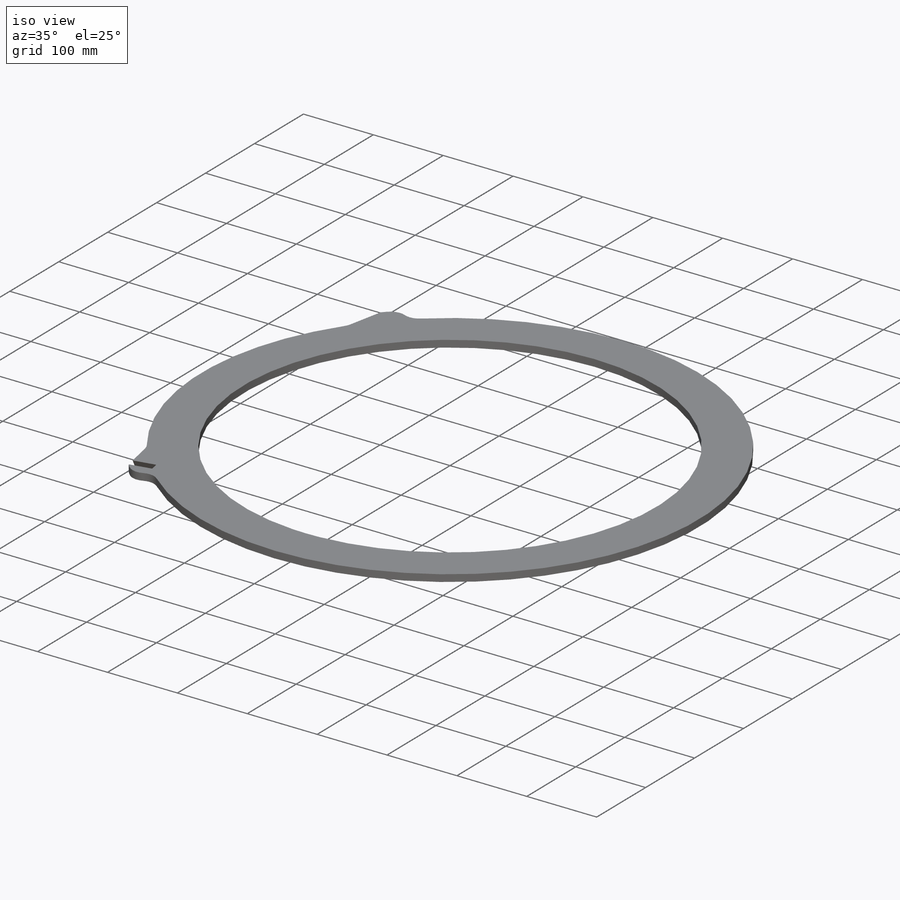
[diagram: iso view]
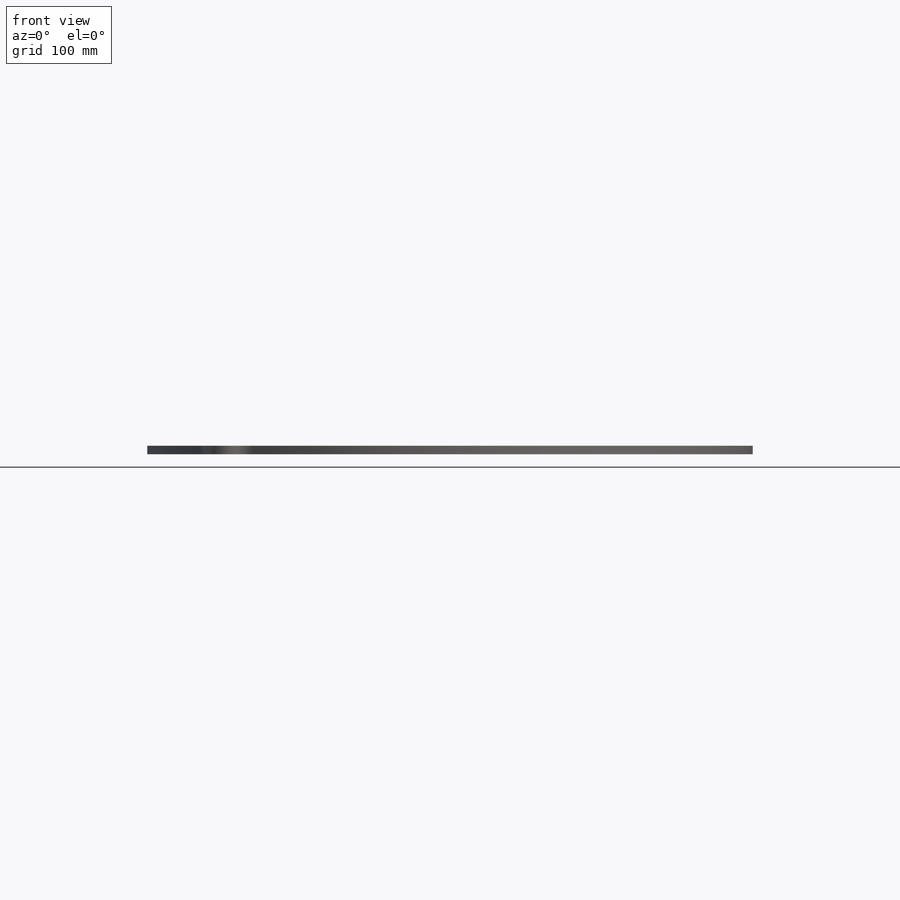
[diagram: front view]
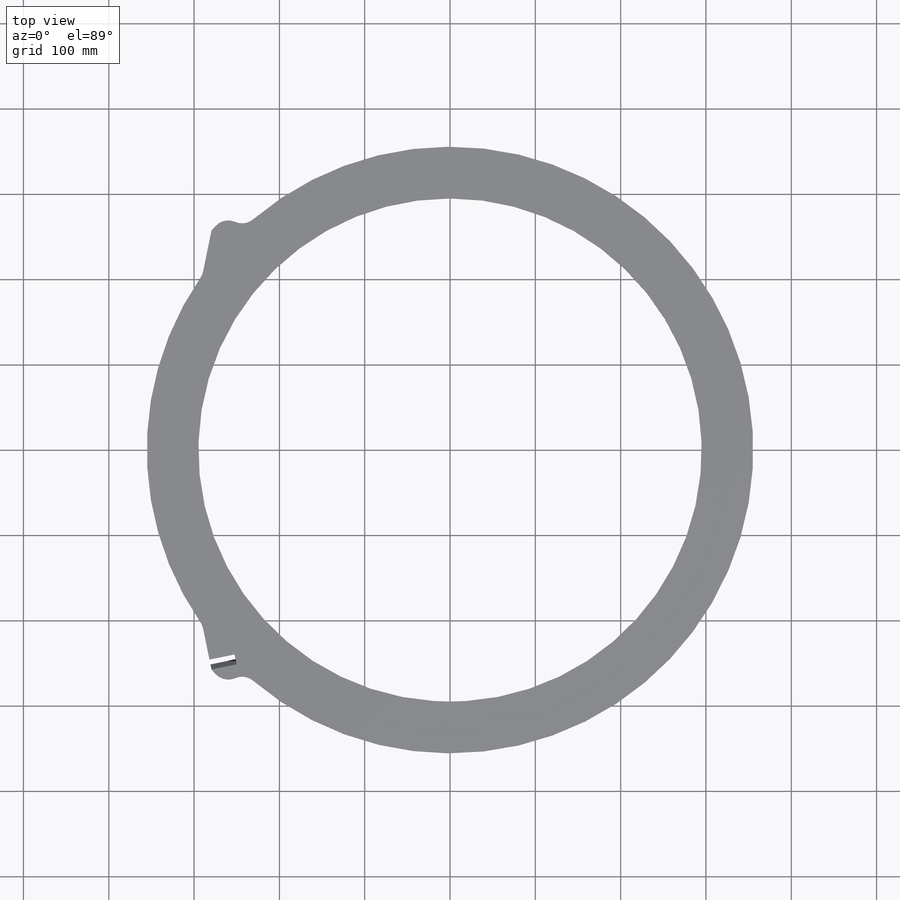
[diagram: top view]
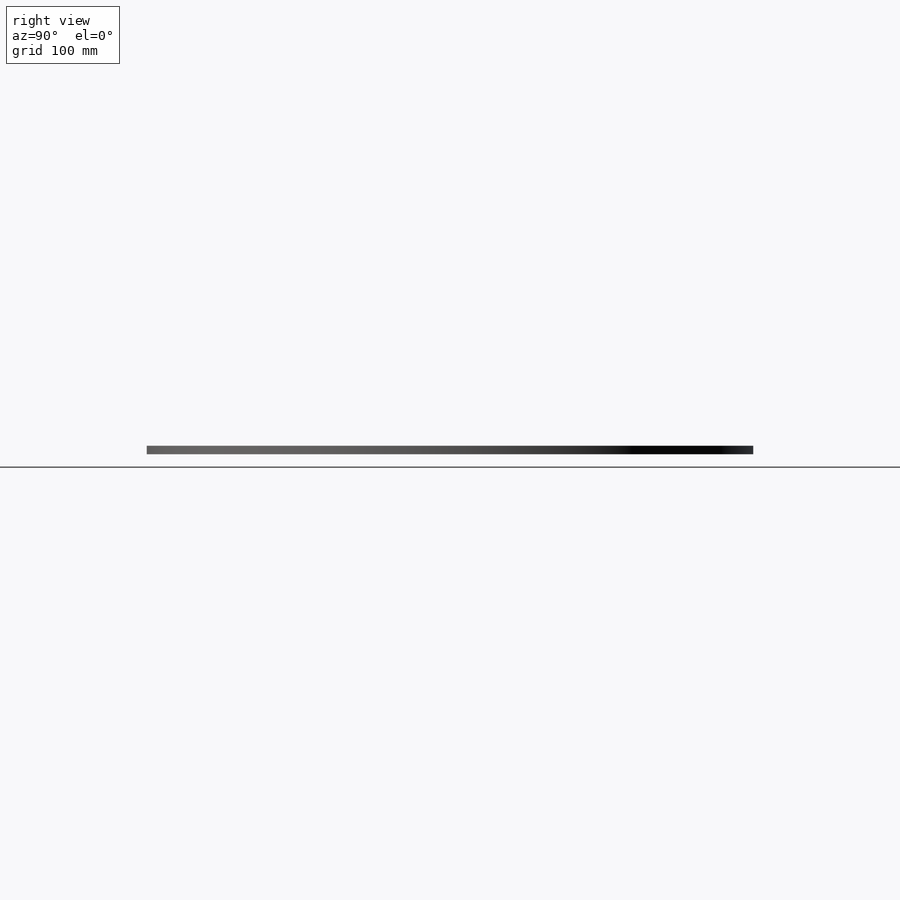
[diagram: right view]
SOLIDWORKS PART (.sldprt)
format: sldprt  version: not decoded by parser v0  size: 219,648 bytes
history: native  units: mm
features: sketch x4, extrude x2, cut_extrude x2, material x1, fillet x1, plane x1, mirror x1 (+11 scaffold rows collapsed)
feature tree (23):
  scaffold x11  (default folders/planes/origin — collapsed)
  material  "Material <not specified>"
  sketch  "Sketch1"  dims[D1=590.0mm D2=711.0mm]
  extrude  "Boss-Extrude1"  Depth=10mm
  sketch  "Sketch2"  dims[c1.D3=380.0mm c1.D4=20.0mm c1.D1=85.0mm c1.D2=85.0mm c2.D2=12.0deg c2.D3=~366.189795mm c3.D3=6.0deg c3.D1=~366.189795mm c4.D1=4.0deg]
  extrude  "Boss-Extrude2"  Depth=10mm
  fillet  "Fillet1"  Radius=20mm
  plane  "Plane1"
  sketch  "Sketch5"
  cut_extrude  "Cut-Extrude2"  Depth=10mm
  mirror  "Mirror1"
  sketch  "Sketch7"  dims[D1=30.0mm]
  cut_extrude  "Cut-Extrude3"  Depth=10mm
decode coverage: 8 of 10 modeling features carry decoded parameters
note: ~ marks probable driven/reference dimensions
note: suppression state not decoded; provenance and decode notes live in map.json
